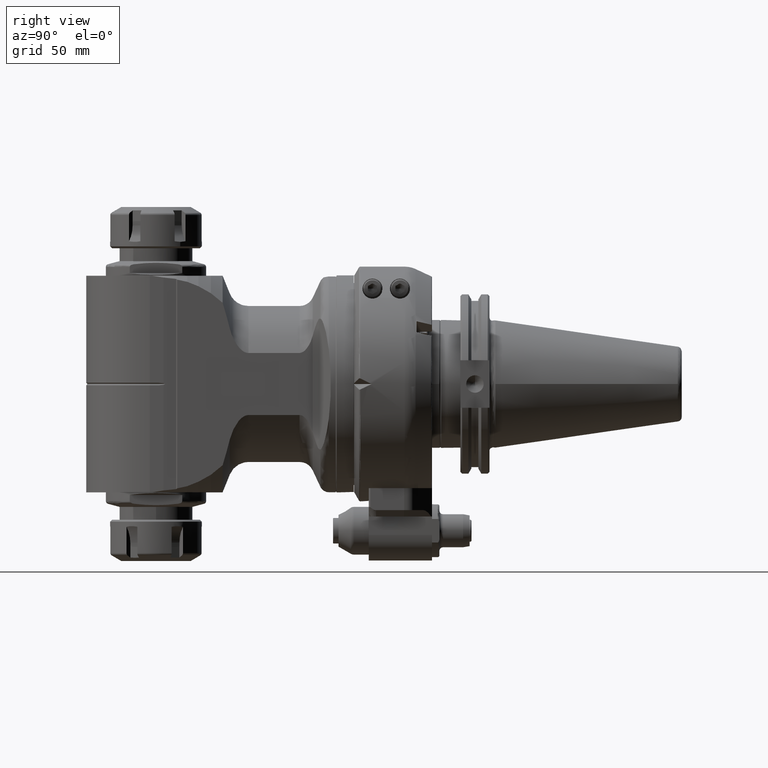
[diagram: clean part render]
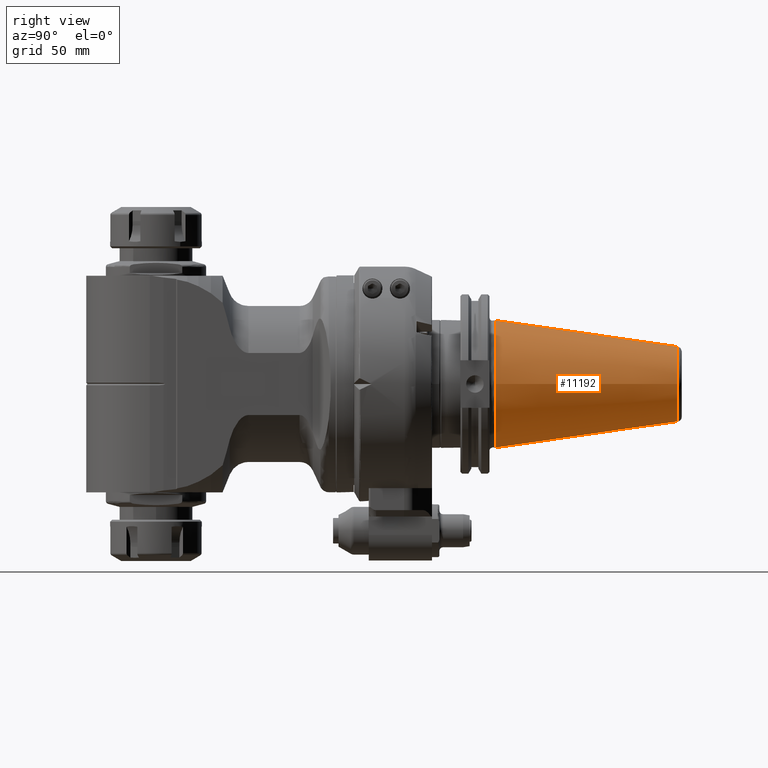
[diagram: same view with one face highlighted and labeled with its STEP entity id]
A machine part, right view. The second image highlights one B-rep face of the part: STEP entity #11192.
In plain terms, the highlighted conical surface has half-angle 8.297 deg.
Its self-contained STEP definition (entity closure, byte-faithful):
#196=CONICAL_SURFACE('',#12310,27.67265681028,0.144812411498922);
#1463=FACE_OUTER_BOUND('',#2208,.T.);
#2208=EDGE_LOOP('',(#9272,#9273,#9274,#9275,#9276,#9277));
#2893=LINE('',#19864,#3580);
#3580=VECTOR('',#14770,27.67265681028);
#4229=CIRCLE('',#12308,34.925);
#4230=CIRCLE('',#12309,34.925);
#4231=CIRCLE('',#12311,20.42031362057);
#4232=CIRCLE('',#12312,20.42031362057);
#5137=VERTEX_POINT('',#19857);
#5138=VERTEX_POINT('',#19858);
#5139=VERTEX_POINT('',#19863);
#5140=VERTEX_POINT('',#19865);
#6588=EDGE_CURVE('',#5137,#5138,#4229,.T.);
#6590=EDGE_CURVE('',#5138,#5137,#4230,.T.);
#6591=EDGE_CURVE('',#5137,#5139,#2893,.T.);
#6592=EDGE_CURVE('',#5140,#5139,#4231,.T.);
#6593=EDGE_CURVE('',#5139,#5140,#4232,.T.);
#9272=ORIENTED_EDGE('',*,*,#6588,.F.);
#9273=ORIENTED_EDGE('',*,*,#6591,.T.);
#9274=ORIENTED_EDGE('',*,*,#6592,.F.);
#9275=ORIENTED_EDGE('',*,*,#6593,.F.);
#9276=ORIENTED_EDGE('',*,*,#6591,.F.);
#9277=ORIENTED_EDGE('',*,*,#6590,.F.);
#11192=ADVANCED_FACE('',(#1463),#196,.T.);
#12308=AXIS2_PLACEMENT_3D('',#19859,#14763,#14764);
#12309=AXIS2_PLACEMENT_3D('',#19861,#14766,#14767);
#12310=AXIS2_PLACEMENT_3D('',#19862,#14768,#14769);
#12311=AXIS2_PLACEMENT_3D('',#19866,#14771,#14772);
#12312=AXIS2_PLACEMENT_3D('',#19867,#14773,#14774);
#14763=DIRECTION('center_axis',(0.,-1.,0.));
#14764=DIRECTION('ref_axis',(-1.,0.,0.));
#14766=DIRECTION('center_axis',(0.,-1.,0.));
#14767=DIRECTION('ref_axis',(-1.,0.,0.));
#14768=DIRECTION('center_axis',(0.,-1.,0.));
#14769=DIRECTION('ref_axis',(-1.,0.,0.));
#14770=DIRECTION('',(-0.144306807239621,0.98953299358046,-1.76724869581176E-17));
#14771=DIRECTION('center_axis',(0.,1.,0.));
#14772=DIRECTION('ref_axis',(-1.,0.,0.));
#14773=DIRECTION('center_axis',(0.,1.,0.));
#14774=DIRECTION('ref_axis',(-1.,0.,0.));
#19857=CARTESIAN_POINT('',(34.925,76.9999997692299,0.));
#19858=CARTESIAN_POINT('',(-34.9250000000012,76.9999997692296,4.27707894602227E-15));
#19859=CARTESIAN_POINT('Origin',(0.,76.9999997692299,0.));
#19861=CARTESIAN_POINT('Origin',(0.,76.9999997692299,0.));
#19862=CARTESIAN_POINT('Origin',(0.,126.73038327828,0.));
#19863=CARTESIAN_POINT('',(20.4203136205638,176.460766787329,2.50076717130085E-15));
#19864=CARTESIAN_POINT('',(27.67265681028,126.73038327828,3.38892305866126E-15));
#19865=CARTESIAN_POINT('',(2.50076717130162E-15,176.46076678733,-20.42031362057));
#19866=CARTESIAN_POINT('Origin',(0.,176.46076678733,0.));
#19867=CARTESIAN_POINT('Origin',(0.,176.46076678733,0.));